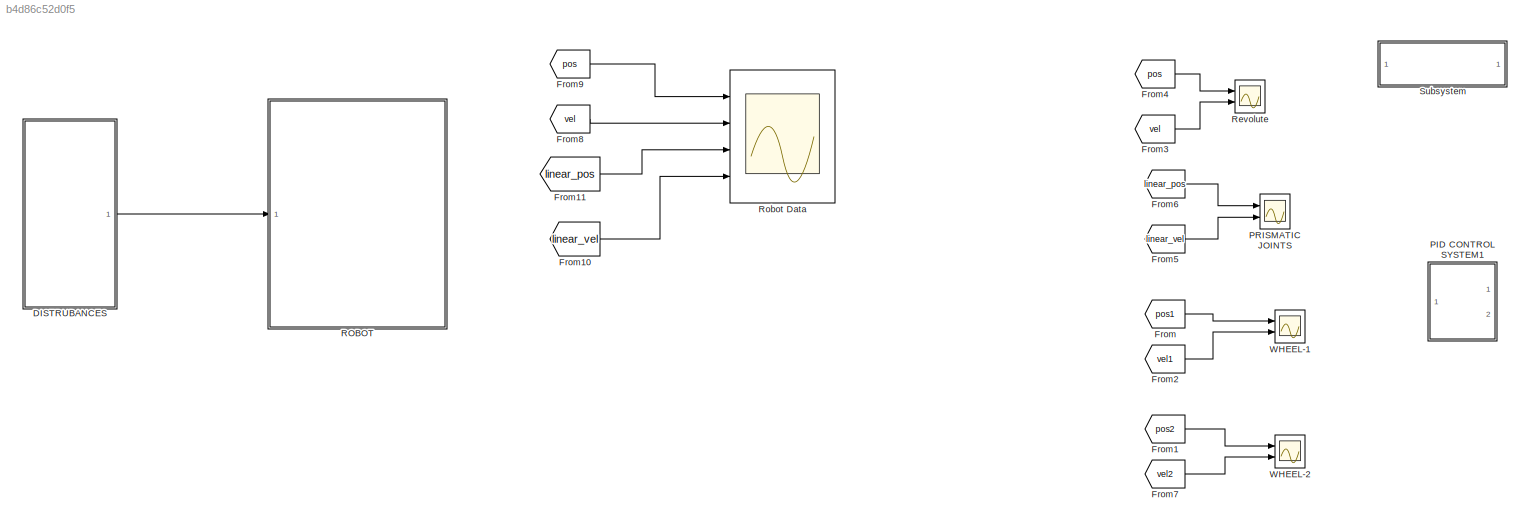
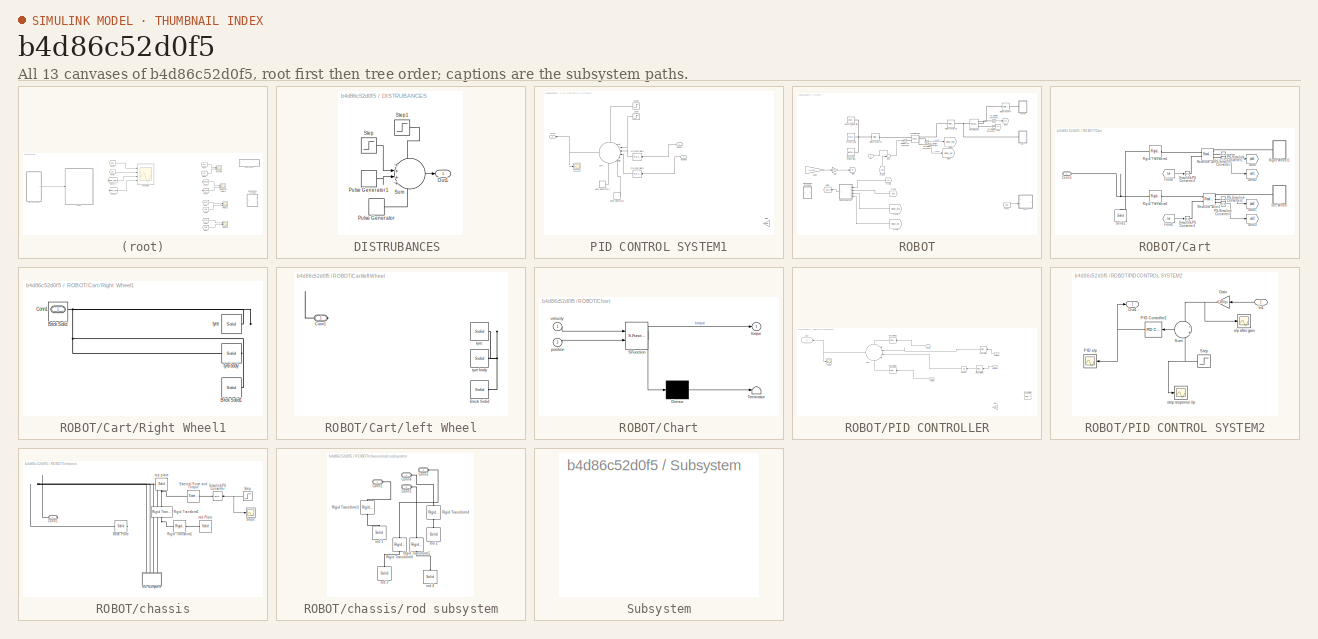
[diagram: thumbnail index - all 13 canvases of the model, root first then tree order]
MODEL slx_b4d86c52d0f5
KIND model
CONFIG AbsTol = auto
CONFIG EnableMultiTasking = on
CONFIG FixedStep = auto
CONFIG MaxStep = auto
CONFIG MinStep = auto
CONFIG RelTol = 1e-3
CONFIG SampleTimeConstraint = Unconstrained
CONFIG Solver = VariableStepAuto
CONFIG SolverName = VariableStepAuto
CONFIG StartTime = 0.0
CONFIG StopTime = 10
BLOCK [SubSystem] DISTRUBANCES 
  Ports = [0, 1]
  RequestExecContextInheritance = off
BLOCK [Outport] DISTRUBANCES /Out1
  IconDisplay = Port number
BLOCK [DiscretePulseGenerator] DISTRUBANCES /Pulse Generator
  Amplitude = 1000
  Period = 5
  Ports = [0, 1]
  PulseType = Time based
  PulseWidth = 0.1
BLOCK [DiscretePulseGenerator] DISTRUBANCES /Pulse Generator1
  Amplitude = -1000
  Period = 5
  PhaseDelay = 2.5
  Ports = [0, 1]
  PulseType = Time based
  PulseWidth = 0.1
BLOCK [Step] DISTRUBANCES /Step
  After = 100
  SampleTime = 0
  Time = 0.5
BLOCK [Step] DISTRUBANCES /Step1
  After = 0
  Before = 100
  SampleTime = 0
  Time = 0.1
BLOCK [Sum] DISTRUBANCES /Sum
  IconShape = round
  InputSameDT = off
  Inputs = ++++
  OutDataTypeStr = Inherit: Inherit via internal rule
  Ports = [4, 1]
  SaturateOnIntegerOverflow = off
BLOCK [From] From
  GotoTag = pos1
  TagVisibility = global
BLOCK [From] From1
  GotoTag = pos2
  TagVisibility = global
BLOCK [From] From10
  GotoTag = linear_vel
  TagVisibility = global
BLOCK [From] From11
  GotoTag = linear_pos
  TagVisibility = global
BLOCK [From] From2
  GotoTag = vel1
  TagVisibility = global
BLOCK [From] From3
  GotoTag = vel
  TagVisibility = global
BLOCK [From] From4
  GotoTag = pos
  TagVisibility = global
BLOCK [From] From5
  GotoTag = linear_vel
  TagVisibility = global
BLOCK [From] From6
  GotoTag = linear_pos
  TagVisibility = global
BLOCK [From] From7
  GotoTag = vel2
  TagVisibility = global
BLOCK [From] From8
  GotoTag = vel
  TagVisibility = global
BLOCK [From] From9
  GotoTag = pos
  TagVisibility = global
BLOCK [SubSystem] PID CONTROL SYSTEM1
  Commented = on
  Ports = [2, 1]
  RequestExecContextInheritance = off
BLOCK [Scope] PID CONTROL SYSTEM1/	PID o//p
  Floating = off
  NumInputPorts = 1
  Ports = [1]
  ScopeSpecificationString = Simulink.scopes.TimeScopeBlockCfg('CurrentConfiguration', extmgr.ConfigurationSet(extmgr.Configuration('Core','General UI',true),extmgr.Configuration('Core','Source UI',true),extmgr.Configuration('Sources','WiredSimulink',true),extmgr.Configuration('Visuals','Time Domain',true,'SerializedDisplays',{struct('MinYLimReal','-3135.24324','MaxYLimReal','3138.49141','YLabelReal','','MinYLimMag','  0.0000...<+1368ch>  <repeated x3 — deduplicated; at blocks: PID o/p>
BLOCK [Gain] PID CONTROL SYSTEM1/Gain
  Gain = 180/pi
  OutDataTypeStr = Inherit: Inherit via internal rule
  ParamDataTypeStr = Inherit: Inherit via internal rule
  SaturateOnIntegerOverflow = off
BLOCK [Reference] PID CONTROL SYSTEM1/PID Controller1  REF=simulink/Continuous/PID Controller
  Ports = [1, 1]
  SourceBlock = simulink/Continuous/PID Controller
  SourceProductBaseCode = SL
  SourceType = PID 1dof
BLOCK [Reference] PID CONTROL SYSTEM1/PID Controller2  REF=simulink/Continuous/PID Controller
  Ports = [1, 1]
  SourceBlock = simulink/Continuous/PID Controller
  SourceProductBaseCode = SL
  SourceType = PID 1dof
BLOCK [DiscretePulseGenerator] PID CONTROL SYSTEM1/Pulse Generator
  Amplitude = 1000
  Period = 10
  Ports = [0, 1]
  PulseType = Time based
  PulseWidth = 50
BLOCK [DiscretePulseGenerator] PID CONTROL SYSTEM1/Pulse Generator1
  Amplitude = -1000
  Period = 10
  PhaseDelay = 0.5
  Ports = [0, 1]
  PulseType = Time based
  PulseWidth = 50
BLOCK [Step] PID CONTROL SYSTEM1/Step
  After = 100
  SampleTime = 0
  Time = 0.5
BLOCK [Step] PID CONTROL SYSTEM1/Step1
  After = 0
  Before = 100
  SampleTime = 0
  Time = 0.1
BLOCK [Sum] PID CONTROL SYSTEM1/Sum
  IconShape = round
  InputSameDT = off
  Inputs = ++--++
  OutDataTypeStr = Inherit: Inherit via internal rule
  Ports = [6, 1]
  SaturateOnIntegerOverflow = off
BLOCK [Outport] PID CONTROL SYSTEM1/force
  IconDisplay = Port number
BLOCK [Inport] PID CONTROL SYSTEM1/position
  IconDisplay = Port number
  Port = 2
BLOCK [Inport] PID CONTROL SYSTEM1/velocity
  IconDisplay = Port number
BLOCK [Scope] PRISMATIC JOINTS
  Floating = off
  NumInputPorts = 2
  Ports = [2]
  ScopeSpecificationString = Simulink.scopes.TimeScopeBlockCfg('CurrentConfiguration', extmgr.ConfigurationSet(extmgr.Configuration('Core','General UI',true),extmgr.Configuration('Core','Source UI',true),extmgr.Configuration('Sources','WiredSimulink',true,'DataLoggingVariableName','ScopeData1'),extmgr.Configuration('Visuals','Time Domain',true,'SerializedDisplays',{struct('MinYLimReal','-0.03252','MaxYLimReal','0.04221','YLab...<+2046ch>
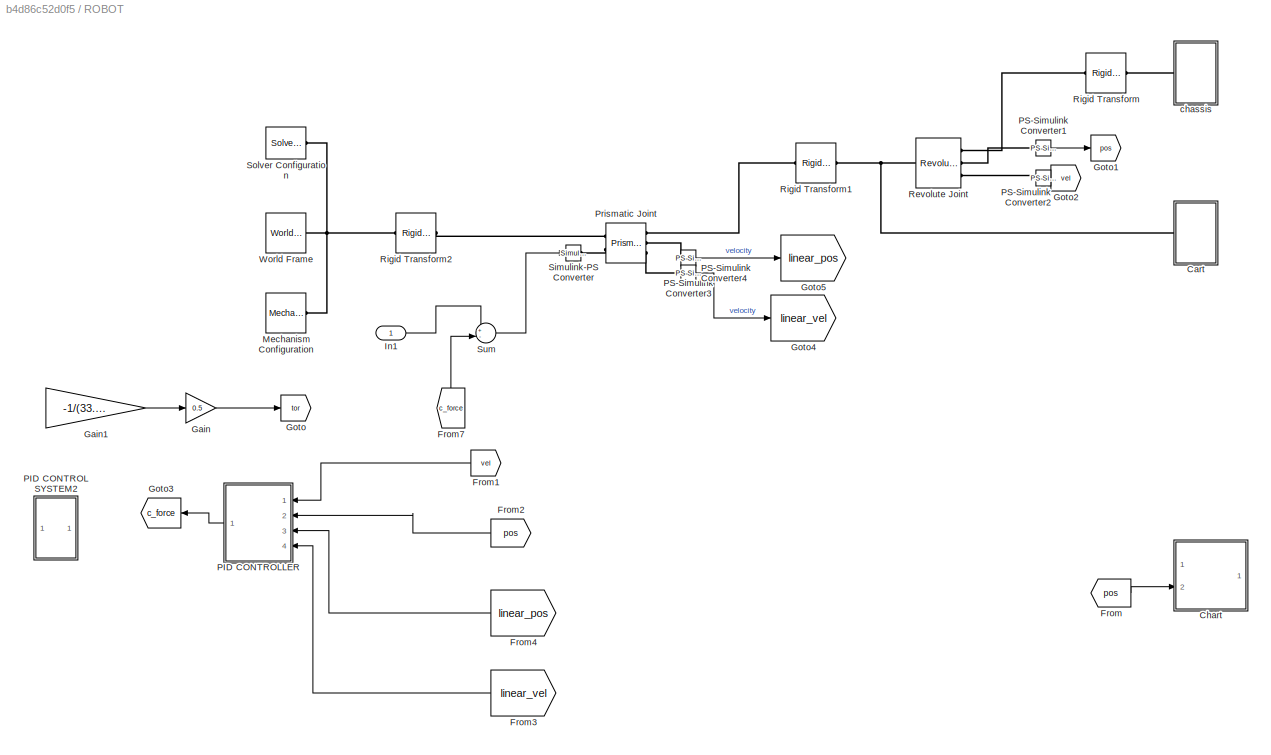
BLOCK [SubSystem] ROBOT
  Ports = [1]
  RequestExecContextInheritance = off
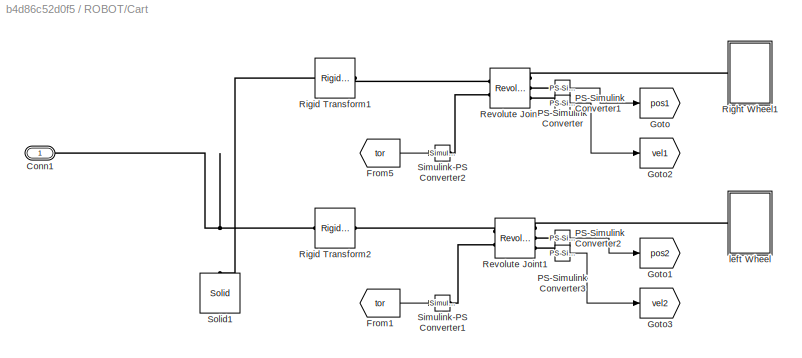
BLOCK [SubSystem] ROBOT/Cart
  Ports = [0, 0, 0, 0, 0, 1]
  RequestExecContextInheritance = off
BLOCK [PMIOPort] ROBOT/Cart/Conn1
  Side = Left
BLOCK [From] ROBOT/Cart/From1
  GotoTag = tor
  TagVisibility = global
BLOCK [From] ROBOT/Cart/From5
  GotoTag = tor
  TagVisibility = global
BLOCK [Goto] ROBOT/Cart/Goto
  GotoTag = pos1
  TagVisibility = global
BLOCK [Goto] ROBOT/Cart/Goto1
  GotoTag = pos2
  TagVisibility = global
BLOCK [Goto] ROBOT/Cart/Goto2
  GotoTag = vel1
  TagVisibility = global
BLOCK [Goto] ROBOT/Cart/Goto3
  GotoTag = vel2
  TagVisibility = global
BLOCK [Reference] ROBOT/Cart/PS-Simulink Converter  REF=nesl_utility/PS-Simulink
Converter
  Ports = [0, 1, 0, 0, 0, 1]
  SourceBlock = nesl_utility/PS-Simulink\nConverter
  SourceProductBaseCode = SS
  SourceType = PS-Simulink\nConverter
BLOCK [Reference] ROBOT/Cart/PS-Simulink Converter1  REF=nesl_utility/PS-Simulink
Converter
  Ports = [0, 1, 0, 0, 0, 1]
  SourceBlock = nesl_utility/PS-Simulink\nConverter
  SourceProductBaseCode = SS
  SourceType = PS-Simulink\nConverter
BLOCK [Reference] ROBOT/Cart/PS-Simulink Converter2  REF=nesl_utility/PS-Simulink
Converter
  Ports = [0, 1, 0, 0, 0, 1]
  SourceBlock = nesl_utility/PS-Simulink\nConverter
  SourceProductBaseCode = SS
  SourceType = PS-Simulink\nConverter
BLOCK [Reference] ROBOT/Cart/PS-Simulink Converter3  REF=nesl_utility/PS-Simulink
Converter
  Ports = [0, 1, 0, 0, 0, 1]
  SourceBlock = nesl_utility/PS-Simulink\nConverter
  SourceProductBaseCode = SS
  SourceType = PS-Simulink\nConverter
BLOCK [Reference] ROBOT/Cart/Revolute Joint  REF=sm_lib/Joints/Revolute Joint
  Ports = [0, 0, 0, 0, 0, 2, 3]
  SourceBlock = sm_lib/Joints/Revolute Joint
  SourceProductBaseCode = MS
  SourceType = Revolute Joint
BLOCK [Reference] ROBOT/Cart/Revolute Joint1  REF=sm_lib/Joints/Revolute Joint
  Ports = [0, 0, 0, 0, 0, 2, 3]
  SourceBlock = sm_lib/Joints/Revolute Joint
  SourceProductBaseCode = MS
  SourceType = Revolute Joint
BLOCK [SubSystem] ROBOT/Cart/Right Wheel1
  Ports = [0, 0, 0, 0, 0, 1]
  RequestExecContextInheritance = off
BLOCK [Reference] ROBOT/Cart/Right Wheel1/Brick Solid  REF=sm_lib/Body Elements/Solid
  Ports = [0, 0, 0, 0, 0, 0, 1]
  SourceBlock = sm_lib/Body Elements/Solid
  SourceProductBaseCode = MS
  SourceType = Solid
BLOCK [Reference] ROBOT/Cart/Right Wheel1/Brick Solid1  REF=sm_lib/Body Elements/Solid
  Ports = [0, 0, 0, 0, 0, 0, 1]
  SourceBlock = sm_lib/Body Elements/Solid
  SourceProductBaseCode = MS
  SourceType = Solid
BLOCK [PMIOPort] ROBOT/Cart/Right Wheel1/Conn1
  Side = Left
BLOCK [Reference] ROBOT/Cart/Right Wheel1/tyre  REF=sm_lib/Body Elements/Solid
  Ports = [0, 0, 0, 0, 0, 0, 1]
  SourceBlock = sm_lib/Body Elements/Solid
  SourceProductBaseCode = MS
  SourceType = Solid
BLOCK [Reference] ROBOT/Cart/Right Wheel1/tyre body  REF=sm_lib/Body Elements/Solid
  Ports = [0, 0, 0, 0, 0, 0, 1]
  SourceBlock = sm_lib/Body Elements/Solid
  SourceProductBaseCode = MS
  SourceType = Solid
BLOCK [Reference] ROBOT/Cart/Rigid Transform1  REF=sm_lib/Frames and
Transforms/Rigid
Transform
  Ports = [0, 0, 0, 0, 0, 1, 1]
  SourceBlock = sm_lib/Frames and\nTransforms/Rigid\nTransform
  SourceProductBaseCode = MS
  SourceType = Rigid\nTransform
BLOCK [Reference] ROBOT/Cart/Rigid Transform2  REF=sm_lib/Frames and
Transforms/Rigid
Transform
  Ports = [0, 0, 0, 0, 0, 1, 1]
  SourceBlock = sm_lib/Frames and\nTransforms/Rigid\nTransform
  SourceProductBaseCode = MS
  SourceType = Rigid\nTransform
BLOCK [Reference] ROBOT/Cart/Simulink-PS Converter1  REF=nesl_utility/Simulink-PS
Converter
  Ports = [1, 0, 0, 0, 0, 0, 1]
  SourceBlock = nesl_utility/Simulink-PS\nConverter
  SourceProductBaseCode = SS
  SourceType = Simulink-PS\nConverter
BLOCK [Reference] ROBOT/Cart/Simulink-PS Converter2  REF=nesl_utility/Simulink-PS
Converter
  Ports = [1, 0, 0, 0, 0, 0, 1]
  SourceBlock = nesl_utility/Simulink-PS\nConverter
  SourceProductBaseCode = SS
  SourceType = Simulink-PS\nConverter
BLOCK [Reference] ROBOT/Cart/Solid1  REF=sm_lib/Body Elements/Solid
  Ports = [0, 0, 0, 0, 0, 0, 1]
  SourceBlock = sm_lib/Body Elements/Solid
  SourceProductBaseCode = MS
  SourceType = Solid
BLOCK [SubSystem] ROBOT/Cart/left Wheel
  Ports = [0, 0, 0, 0, 0, 1]
  RequestExecContextInheritance = off
BLOCK [Reference] ROBOT/Cart/left Wheel/Brick Solid  REF=sm_lib/Body Elements/Solid
  Ports = [0, 0, 0, 0, 0, 0, 1]
  SourceBlock = sm_lib/Body Elements/Solid
  SourceProductBaseCode = MS
  SourceType = Solid
BLOCK [PMIOPort] ROBOT/Cart/left Wheel/Conn1
  Side = Left
BLOCK [Reference] ROBOT/Cart/left Wheel/tyre  REF=sm_lib/Body Elements/Solid
  Ports = [0, 0, 0, 0, 0, 0, 1]
  SourceBlock = sm_lib/Body Elements/Solid
  SourceProductBaseCode = MS
  SourceType = Solid
BLOCK [Reference] ROBOT/Cart/left Wheel/tyre body  REF=sm_lib/Body Elements/Solid
  Ports = [0, 0, 0, 0, 0, 0, 1]
  SourceBlock = sm_lib/Body Elements/Solid
  SourceProductBaseCode = MS
  SourceType = Solid
BLOCK [SubSystem] ROBOT/Chart
  Commented = on
  ErrorFcn = Stateflow.Translate.translate
  PermitHierarchicalResolution = ExplicitOnly
  Ports = [2, 1]
  RequestExecContextInheritance = off
  SFBlockType = Chart
  TreatAsAtomicUnit = on
BLOCK [Demux] ROBOT/Chart/ Demux 
  DisplayOption = bar
  Outputs = 1
  Ports = [1, 1]
BLOCK [S-Function] ROBOT/Chart/ SFunction 
  EnableBusSupport = on
  FunctionName = sf_sfun
  PortCounts = [2 2]
  Ports = [2, 2]
  SFcnIsStateOwnerBlock = off
  SFunctionDeploymentMode = off
  Tag = Stateflow S-Function BALANCING_2019 3
BLOCK [Terminator] ROBOT/Chart/ Terminator 
BLOCK [Inport] ROBOT/Chart/position
  IconDisplay = Port number
  Port = 2
BLOCK [Outport] ROBOT/Chart/torque
  IconDisplay = Port number
BLOCK [Inport] ROBOT/Chart/velocity
  IconDisplay = Port number
BLOCK [From] ROBOT/From
  Commented = on
  GotoTag = pos
  TagVisibility = global
BLOCK [From] ROBOT/From1
  GotoTag = vel
  TagVisibility = global
BLOCK [From] ROBOT/From2
  GotoTag = pos
  TagVisibility = global
BLOCK [From] ROBOT/From3
  GotoTag = linear_vel
  TagVisibility = global
BLOCK [From] ROBOT/From4
  GotoTag = linear_pos
  TagVisibility = global
BLOCK [From] ROBOT/From7
  GotoTag = c_force
BLOCK [Gain] ROBOT/Gain
  Gain = 0.5
  OutDataTypeStr = Inherit: Inherit via internal rule
  ParamDataTypeStr = Inherit: Inherit via internal rule
  SaturateOnIntegerOverflow = off
BLOCK [Gain] ROBOT/Gain1
  Gain = -1/(33.5*10^-3)
  OutDataTypeStr = Inherit: Inherit via internal rule
  ParamDataTypeStr = Inherit: Inherit via internal rule
  SaturateOnIntegerOverflow = off
BLOCK [Goto] ROBOT/Goto
  GotoTag = tor
  TagVisibility = global
BLOCK [Goto] ROBOT/Goto1
  GotoTag = pos
  TagVisibility = global
BLOCK [Goto] ROBOT/Goto2
  GotoTag = vel
  TagVisibility = global
BLOCK [Goto] ROBOT/Goto3
  GotoTag = c_force
BLOCK [Goto] ROBOT/Goto4
  GotoTag = linear_vel
  TagVisibility = global
BLOCK [Goto] ROBOT/Goto5
  GotoTag = linear_pos
  TagVisibility = global
BLOCK [Inport] ROBOT/In1
  IconDisplay = Port number
BLOCK [Reference] ROBOT/Mechanism Configuration  REF=sm_lib/Utilities/Mechanism
Configuration
  Ports = [0, 0, 0, 0, 0, 0, 1]
  SourceBlock = sm_lib/Utilities/Mechanism\nConfiguration
  SourceProductBaseCode = MS
  SourceType = Mechanism\nConfiguration
BLOCK [SubSystem] ROBOT/PID CONTROL SYSTEM2
  Commented = on
  Ports = [1, 1]
  RequestExecContextInheritance = off
BLOCK [Scope] ROBOT/PID CONTROL SYSTEM2/	PID o//p
  Floating = off
  NumInputPorts = 1
  Ports = [1]
BLOCK [Gain] ROBOT/PID CONTROL SYSTEM2/Gain
  Gain = 180/pi
  OutDataTypeStr = Inherit: Inherit via internal rule
  ParamDataTypeStr = Inherit: Inherit via internal rule
  SaturateOnIntegerOverflow = off
BLOCK [Inport] ROBOT/PID CONTROL SYSTEM2/In1
  IconDisplay = Port number
BLOCK [Outport] ROBOT/PID CONTROL SYSTEM2/Out1
  IconDisplay = Port number
BLOCK [Reference] ROBOT/PID CONTROL SYSTEM2/PID Controller1  REF=simulink/Continuous/PID Controller
  Ports = [1, 1]
  SourceBlock = simulink/Continuous/PID Controller
  SourceProductBaseCode = SL
  SourceType = PID 1dof
BLOCK [Step] ROBOT/PID CONTROL SYSTEM2/Step
  After = 0
  Before = 1
  SampleTime = 0
  Time = 0.1
BLOCK [Sum] ROBOT/PID CONTROL SYSTEM2/Sum
  IconShape = round
  InputSameDT = off
  Inputs = -+
  OutDataTypeStr = Inherit: Inherit via internal rule
  Ports = [2, 1]
  SaturateOnIntegerOverflow = off
BLOCK [Scope] ROBOT/PID CONTROL SYSTEM2/o//p after gain 
  Floating = off
  NumInputPorts = 1
  Ports = [1]
  ScopeSpecificationString = Simulink.scopes.TimeScopeBlockCfg('CurrentConfiguration', extmgr.ConfigurationSet(extmgr.Configuration('Core','General UI',true),extmgr.Configuration('Core','Source UI',true),extmgr.Configuration('Sources','WiredSimulink',true,'DataLoggingVariableName','ScopeData2'),extmgr.Configuration('Visuals','Time Domain',true,'SerializedDisplays',{struct('MinYLimReal','-151.46736','MaxYLimReal','16.82971','Y...<+1404ch>
BLOCK [Scope] ROBOT/PID CONTROL SYSTEM2/step response i//p
  Floating = off
  NumInputPorts = 1
  Ports = [1]
  ScopeSpecificationString = Simulink.scopes.TimeScopeBlockCfg('CurrentConfiguration', extmgr.ConfigurationSet(extmgr.Configuration('Core','General UI',true),extmgr.Configuration('Core','Source UI',true),extmgr.Configuration('Sources','WiredSimulink',true,'DataLoggingVariableName','ScopeData3'),extmgr.Configuration('Visuals','Time Domain',true,'SerializedDisplays',{struct('MinYLimReal','-0.125','MaxYLimReal','1.125','YLabelRe...<+1351ch>
BLOCK [SubSystem] ROBOT/PID CONTROLLER
  Ports = [4, 1]
  RequestExecContextInheritance = off
BLOCK [Scope] ROBOT/PID CONTROLLER/	PID o//p
  Floating = off
  NumInputPorts = 1
  Ports = [1]
BLOCK [Gain] ROBOT/PID CONTROLLER/Gain
  Commented = on
  Gain = 180/pi
  OutDataTypeStr = Inherit: Inherit via internal rule
  ParamDataTypeStr = Inherit: Inherit via internal rule
  SaturateOnIntegerOverflow = off
BLOCK [Integrator] ROBOT/PID CONTROLLER/Integrator
  Ports = [1, 1]
BLOCK [Reference] ROBOT/PID CONTROLLER/PID Controller  REF=simulink/Continuous/PID Controller
  Ports = [1, 1]
  SourceBlock = simulink/Continuous/PID Controller
  SourceProductBaseCode = SL
  SourceProductName = Simulink
  SourceType = PID 1dof
BLOCK [Reference] ROBOT/PID CONTROLLER/PID Controller1  REF=simulink/Continuous/PID Controller
  Ports = [1, 1]
  SourceBlock = simulink/Continuous/PID Controller
  SourceProductBaseCode = SL
  SourceType = PID 1dof
BLOCK [Reference] ROBOT/PID CONTROLLER/PID Controller2  REF=simulink/Continuous/PID Controller
  Ports = [1, 1]
  SourceBlock = simulink/Continuous/PID Controller
  SourceProductBaseCode = SL
  SourceType = PID 1dof
BLOCK [Reference] ROBOT/PID CONTROLLER/PID Controller3  REF=simulink/Continuous/PID Controller
  Ports = [1, 1]
  SourceBlock = simulink/Continuous/PID Controller
  SourceProductBaseCode = SL
  SourceProductName = Simulink
  SourceType = PID 1dof
BLOCK [Reference] ROBOT/PID CONTROLLER/PID Controller4  REF=simulink/Continuous/PID Controller
  Commented = on
  Ports = [1, 1]
  SourceBlock = simulink/Continuous/PID Controller
  SourceProductBaseCode = SL
  SourceType = PID 1dof
BLOCK [Sum] ROBOT/PID CONTROLLER/Sum
  IconShape = round
  InputSameDT = off
  Inputs = ++++
  OutDataTypeStr = Inherit: Inherit via internal rule
  Ports = [4, 1]
  SaturateOnIntegerOverflow = off
BLOCK [Outport] ROBOT/PID CONTROLLER/force
  IconDisplay = Port number
BLOCK [Inport] ROBOT/PID CONTROLLER/position
  IconDisplay = Port number
  Port = 2
BLOCK [Inport] ROBOT/PID CONTROLLER/position1
  IconDisplay = Port number
  Port = 3
BLOCK [Inport] ROBOT/PID CONTROLLER/velocity
  IconDisplay = Port number
BLOCK [Inport] ROBOT/PID CONTROLLER/velocity1
  IconDisplay = Port number
  Port = 4
BLOCK [Reference] ROBOT/PS-Simulink Converter1  REF=nesl_utility/PS-Simulink
Converter
  Ports = [0, 1, 0, 0, 0, 1]
  SourceBlock = nesl_utility/PS-Simulink\nConverter
  SourceProductBaseCode = SS
  SourceType = PS-Simulink\nConverter
BLOCK [Reference] ROBOT/PS-Simulink Converter2  REF=nesl_utility/PS-Simulink
Converter
  Ports = [0, 1, 0, 0, 0, 1]
  SourceBlock = nesl_utility/PS-Simulink\nConverter
  SourceProductBaseCode = SS
  SourceType = PS-Simulink\nConverter
BLOCK [Reference] ROBOT/PS-Simulink Converter3  REF=nesl_utility/PS-Simulink
Converter
  Ports = [0, 1, 0, 0, 0, 1]
  SourceBlock = nesl_utility/PS-Simulink\nConverter
  SourceProductBaseCode = SS
  SourceType = PS-Simulink\nConverter
BLOCK [Reference] ROBOT/PS-Simulink Converter4  REF=nesl_utility/PS-Simulink
Converter
  Ports = [0, 1, 0, 0, 0, 1]
  SourceBlock = nesl_utility/PS-Simulink\nConverter
  SourceProductBaseCode = SS
  SourceType = PS-Simulink\nConverter
BLOCK [Reference] ROBOT/Prismatic Joint  REF=sm_lib/Joints/Prismatic
Joint
  Ports = [0, 0, 0, 0, 0, 2, 3]
  SourceBlock = sm_lib/Joints/Prismatic\nJoint
  SourceProductBaseCode = MS
  SourceType = Prismatic\nJoint
BLOCK [Reference] ROBOT/Revolute Joint  REF=sm_lib/Joints/Revolute Joint
  Ports = [0, 0, 0, 0, 0, 1, 3]
  SourceBlock = sm_lib/Joints/Revolute Joint
  SourceProductBaseCode = MS
  SourceType = Revolute Joint
BLOCK [Reference] ROBOT/Rigid Transform  REF=sm_lib/Frames and
Transforms/Rigid
Transform
  Ports = [0, 0, 0, 0, 0, 1, 1]
  SourceBlock = sm_lib/Frames and\nTransforms/Rigid\nTransform
  SourceProductBaseCode = MS
  SourceType = Rigid\nTransform
BLOCK [Reference] ROBOT/Rigid Transform1  REF=sm_lib/Frames and
Transforms/Rigid
Transform
  Ports = [0, 0, 0, 0, 0, 1, 1]
  SourceBlock = sm_lib/Frames and\nTransforms/Rigid\nTransform
  SourceProductBaseCode = MS
  SourceType = Rigid\nTransform
BLOCK [Reference] ROBOT/Rigid Transform2  REF=sm_lib/Frames and
Transforms/Rigid
Transform
  Ports = [0, 0, 0, 0, 0, 1, 1]
  SourceBlock = sm_lib/Frames and\nTransforms/Rigid\nTransform
  SourceProductBaseCode = MS
  SourceType = Rigid\nTransform
BLOCK [Reference] ROBOT/Simulink-PS Converter  REF=nesl_utility/Simulink-PS
Converter
  Ports = [1, 0, 0, 0, 0, 0, 1]
  SourceBlock = nesl_utility/Simulink-PS\nConverter
  SourceProductBaseCode = SS
  SourceType = Simulink-PS\nConverter
BLOCK [Reference] ROBOT/Solver Configuration  REF=nesl_utility/Solver
Configuration
  Ports = [0, 0, 0, 0, 0, 0, 1]
  SourceBlock = nesl_utility/Solver\nConfiguration
  SourceProductBaseCode = SS
  SourceType = Solver\nConfiguration
BLOCK [Sum] ROBOT/Sum
  IconShape = round
  InputSameDT = off
  Inputs = +-
  OutDataTypeStr = Inherit: Inherit via internal rule
  Ports = [2, 1]
  SaturateOnIntegerOverflow = off
BLOCK [Reference] ROBOT/World Frame  REF=sm_lib/Frames and
Transforms/World Frame
  Ports = [0, 0, 0, 0, 0, 0, 1]
  SourceBlock = sm_lib/Frames and\nTransforms/World Frame
  SourceProductBaseCode = MS
  SourceType = World Frame
BLOCK [SubSystem] ROBOT/chassis
  Ports = [0, 0, 0, 0, 0, 1]
  RequestExecContextInheritance = off
BLOCK [Reference] ROBOT/chassis/Base Plate  REF=sm_lib/Body Elements/Solid
  Ports = [0, 0, 0, 0, 0, 0, 1]
  SourceBlock = sm_lib/Body Elements/Solid
  SourceProductBaseCode = MS
  SourceType = Solid
BLOCK [PMIOPort] ROBOT/chassis/Conn1
  Side = Left
BLOCK [Reference] ROBOT/chassis/External Force and Torque  REF=sm_lib/Forces and
Torques/External Force
and Torque
  Commented = on
  Ports = [0, 0, 0, 0, 0, 1, 1]
  SourceBlock = sm_lib/Forces and\nTorques/External Force\nand Torque
  SourceProductBaseCode = MS
  SourceType = External Force\nand Torque
BLOCK [Reference] ROBOT/chassis/Rigid Transform1  REF=sm_lib/Frames and
Transforms/Rigid
Transform
  Ports = [0, 0, 0, 0, 0, 1, 1]
  SourceBlock = sm_lib/Frames and\nTransforms/Rigid\nTransform
  SourceProductBaseCode = MS
  SourceType = Rigid\nTransform
BLOCK [Reference] ROBOT/chassis/Rigid Transform2  REF=sm_lib/Frames and
Transforms/Rigid
Transform
  Ports = [0, 0, 0, 0, 0, 1, 1]
  SourceBlock = sm_lib/Frames and\nTransforms/Rigid\nTransform
  SourceProductBaseCode = MS
  SourceType = Rigid\nTransform
BLOCK [Scope] ROBOT/chassis/Scope
  Commented = on
  Floating = off
  NumInputPorts = 1
  Ports = [1]
  ScopeSpecificationString = Simulink.scopes.TimeScopeBlockCfg('CurrentConfiguration', extmgr.ConfigurationSet(extmgr.Configuration('Core','General UI',true),extmgr.Configuration('Core','Source UI',true),extmgr.Configuration('Sources','WiredSimulink',true,'DataLoggingVariableName','ScopeData1'),extmgr.Configuration('Visuals','Time Domain',true,'SerializedDisplays',{struct('MinYLimReal','-0.125','MaxYLimReal','1.125','YLabelRe...<+1351ch>
BLOCK [Reference] ROBOT/chassis/Simulink-PS Converter  REF=nesl_utility/Simulink-PS
Converter
  Commented = on
  Ports = [1, 0, 0, 0, 0, 0, 1]
  SourceBlock = nesl_utility/Simulink-PS\nConverter
  SourceProductBaseCode = SS
  SourceType = Simulink-PS\nConverter
BLOCK [Step] ROBOT/chassis/Step
  After = 0
  Before = 1
  Commented = on
  SampleTime = 0
  Time = 0.01
BLOCK [Reference] ROBOT/chassis/mid Plate  REF=sm_lib/Body Elements/Solid
  Ports = [0, 0, 0, 0, 0, 0, 1]
  SourceBlock = sm_lib/Body Elements/Solid
  SourceProductBaseCode = MS
  SourceType = Solid
BLOCK [SubSystem] ROBOT/chassis/rod subsystem
  Ports = [0, 0, 0, 0, 0, 4]
  RequestExecContextInheritance = off
BLOCK [PMIOPort] ROBOT/chassis/rod subsystem/Conn1
  Side = Left
BLOCK [PMIOPort] ROBOT/chassis/rod subsystem/Conn2
  Port = 2
  Side = Left
BLOCK [PMIOPort] ROBOT/chassis/rod subsystem/Conn3
  Port = 3
  Side = Left
BLOCK [PMIOPort] ROBOT/chassis/rod subsystem/Conn4
  Port = 4
  Side = Left
BLOCK [Reference] ROBOT/chassis/rod subsystem/Rigid Transform3  REF=sm_lib/Frames and
Transforms/Rigid
Transform
  Ports = [0, 0, 0, 0, 0, 1, 1]
  SourceBlock = sm_lib/Frames and\nTransforms/Rigid\nTransform
  SourceProductBaseCode = MS
  SourceType = Rigid\nTransform
BLOCK [Reference] ROBOT/chassis/rod subsystem/Rigid Transform4  REF=sm_lib/Frames and
Transforms/Rigid
Transform
  Ports = [0, 0, 0, 0, 0, 1, 1]
  SourceBlock = sm_lib/Frames and\nTransforms/Rigid\nTransform
  SourceProductBaseCode = MS
  SourceType = Rigid\nTransform
BLOCK [Reference] ROBOT/chassis/rod subsystem/Rigid Transform5  REF=sm_lib/Frames and
Transforms/Rigid
Transform
  Ports = [0, 0, 0, 0, 0, 1, 1]
  SourceBlock = sm_lib/Frames and\nTransforms/Rigid\nTransform
  SourceProductBaseCode = MS
  SourceType = Rigid\nTransform
BLOCK [Reference] ROBOT/chassis/rod subsystem/Rigid Transform6  REF=sm_lib/Frames and
Transforms/Rigid
Transform
  Ports = [0, 0, 0, 0, 0, 1, 1]
  SourceBlock = sm_lib/Frames and\nTransforms/Rigid\nTransform
  SourceProductBaseCode = MS
  SourceType = Rigid\nTransform
BLOCK [Reference] ROBOT/chassis/rod subsystem/rod 1  REF=sm_lib/Body Elements/Solid
  Ports = [0, 0, 0, 0, 0, 0, 1]
  SourceBlock = sm_lib/Body Elements/Solid
  SourceProductBaseCode = MS
  SourceType = Solid
BLOCK [Reference] ROBOT/chassis/rod subsystem/rod 2  REF=sm_lib/Body Elements/Solid
  Ports = [0, 0, 0, 0, 0, 0, 1]
  SourceBlock = sm_lib/Body Elements/Solid
  SourceProductBaseCode = MS
  SourceType = Solid
BLOCK [Reference] ROBOT/chassis/rod subsystem/rod 3  REF=sm_lib/Body Elements/Solid
  Ports = [0, 0, 0, 0, 0, 0, 1]
  SourceBlock = sm_lib/Body Elements/Solid
  SourceProductBaseCode = MS
  SourceType = Solid
BLOCK [Reference] ROBOT/chassis/rod subsystem/rod 4  REF=sm_lib/Body Elements/Solid
  Ports = [0, 0, 0, 0, 0, 0, 1]
  SourceBlock = sm_lib/Body Elements/Solid
  SourceProductBaseCode = MS
  SourceType = Solid
BLOCK [Reference] ROBOT/chassis/top plate  REF=sm_lib/Body Elements/Solid
  Ports = [0, 0, 0, 0, 0, 0, 1]
  SourceBlock = sm_lib/Body Elements/Solid
  SourceProductBaseCode = MS
  SourceType = Solid
BLOCK [Scope] Revolute
  Floating = off
  NumInputPorts = 2
  Ports = [2]
  ScopeSpecificationString = Simulink.scopes.TimeScopeBlockCfg('CurrentConfiguration', extmgr.ConfigurationSet(extmgr.Configuration('Core','General UI',true),extmgr.Configuration('Core','Source UI',true),extmgr.Configuration('Sources','WiredSimulink',true,'DataLoggingVariableName','ScopeData2'),extmgr.Configuration('Visuals','Time Domain',true,'SerializedDisplays',{struct('MinYLimReal','-0.12154','MaxYLimReal','0.40472','YLab...<+2054ch>
BLOCK [Scope] Robot Data
  Floating = off
  NumInputPorts = 4
  Ports = [4]
  ScopeSpecificationString = Simulink.scopes.TimeScopeBlockCfg('CurrentConfiguration', extmgr.ConfigurationSet(extmgr.Configuration('Core','General UI',true),extmgr.Configuration('Core','Source UI',true),extmgr.Configuration('Sources','WiredSimulink',true,'DataLoggingVariableName','ScopeData1','DataLoggingDecimateData',true),extmgr.Configuration('Visuals','Time Domain',true,'SerializedDisplays',{struct('MinYLimReal','-0.06463...<+3498ch>
BLOCK [SubSystem] Subsystem
  OpenFcn = open_system('sm_lib')
  Ports = []
  RequestExecContextInheritance = off
  ShowPortLabels = none
BLOCK [Scope] WHEEL-1
  Floating = off
  NumInputPorts = 2
  Ports = [2]
  ScopeSpecificationString = Simulink.scopes.TimeScopeBlockCfg('CurrentConfiguration', extmgr.ConfigurationSet(extmgr.Configuration('Core','General UI',true),extmgr.Configuration('Core','Source UI',true),extmgr.Configuration('Sources','WiredSimulink',true,'DataLoggingVariableName','ScopeData4'),extmgr.Configuration('Visuals','Time Domain',true,'SerializedDisplays',{struct('MinYLimReal','-18.44341','MaxYLimReal','15.32526','YL...<+1441ch>
BLOCK [Scope] WHEEL-2
  Floating = off
  NumInputPorts = 2
  Ports = [2]
  ScopeSpecificationString = Simulink.scopes.TimeScopeBlockCfg('CurrentConfiguration', extmgr.ConfigurationSet(extmgr.Configuration('Core','General UI',true),extmgr.Configuration('Core','Source UI',true),extmgr.Configuration('Sources','WiredSimulink',true,'DataLoggingVariableName','ScopeData3'),extmgr.Configuration('Visuals','Time Domain',true),extmgr.Configuration('Tools','Plot Navigation',true),extmgr.Configuration('Tools',...<+40ch>
LINE DISTRUBANCES /Pulse Generator1:1 -> DISTRUBANCES /Sum:3
LINE DISTRUBANCES /Pulse Generator:1 -> DISTRUBANCES /Sum:4
LINE DISTRUBANCES /Step1:1 -> DISTRUBANCES /Sum:1
LINE DISTRUBANCES /Step:1 -> DISTRUBANCES /Sum:2
LINE DISTRUBANCES /Sum:1 -> DISTRUBANCES /Out1:1
LINE DISTRUBANCES :1 -> ROBOT:1
LINE From10:1 -> Robot Data:4
LINE From11:1 -> Robot Data:3
LINE From1:1 -> WHEEL-2:1
LINE From2:1 -> WHEEL-1:2
LINE From3:1 -> Revolute:2
LINE From4:1 -> Revolute:1
LINE From5:1 -> PRISMATIC JOINTS:2
LINE From6:1 -> PRISMATIC JOINTS:1
LINE From7:1 -> WHEEL-2:2
LINE From8:1 -> Robot Data:2
LINE From9:1 -> Robot Data:1
LINE From:1 -> WHEEL-1:1
LINE PID CONTROL SYSTEM1/PID Controller1:1 -> PID CONTROL SYSTEM1/Sum:3
LINE PID CONTROL SYSTEM1/PID Controller2:1 -> PID CONTROL SYSTEM1/Sum:4
LINE PID CONTROL SYSTEM1/Pulse Generator1:1 -> PID CONTROL SYSTEM1/Sum:6
LINE PID CONTROL SYSTEM1/Pulse Generator:1 -> PID CONTROL SYSTEM1/Sum:5
LINE PID CONTROL SYSTEM1/Step1:1 -> PID CONTROL SYSTEM1/Sum:1
LINE PID CONTROL SYSTEM1/Step:1 -> PID CONTROL SYSTEM1/Sum:2
NET PID CONTROL SYSTEM1/Sum:1 -> PID CONTROL SYSTEM1/	PID o//p:1, PID CONTROL SYSTEM1/force:1
LINE PID CONTROL SYSTEM1/position:1 -> PID CONTROL SYSTEM1/PID Controller2:1
LINE PID CONTROL SYSTEM1/velocity:1 -> PID CONTROL SYSTEM1/PID Controller1:1
LINE ROBOT/Cart/From1:1 -> ROBOT/Cart/Simulink-PS Converter1:1
LINE ROBOT/Cart/From5:1 -> ROBOT/Cart/Simulink-PS Converter2:1
LINE ROBOT/Cart/PS-Simulink Converter1:1 -> ROBOT/Cart/Goto2:1
LINE ROBOT/Cart/PS-Simulink Converter2:1 -> ROBOT/Cart/Goto1:1
LINE ROBOT/Cart/PS-Simulink Converter3:1 -> ROBOT/Cart/Goto3:1
LINE ROBOT/Cart/PS-Simulink Converter:1 -> ROBOT/Cart/Goto:1
LINE ROBOT/From1:1 -> ROBOT/PID CONTROLLER:1
LINE ROBOT/From2:1 -> ROBOT/PID CONTROLLER:2
LINE ROBOT/From3:1 -> ROBOT/PID CONTROLLER:4
LINE ROBOT/From4:1 -> ROBOT/PID CONTROLLER:3
LINE ROBOT/From7:1 -> ROBOT/Sum:2
LINE ROBOT/From:1 -> ROBOT/Chart:2
LINE ROBOT/Gain1:1 -> ROBOT/Gain:1
LINE ROBOT/Gain:1 -> ROBOT/Goto:1
LINE ROBOT/In1:1 -> ROBOT/Sum:1
NET ROBOT/PID CONTROL SYSTEM2/Gain:1 -> ROBOT/PID CONTROL SYSTEM2/Sum:1, ROBOT/PID CONTROL SYSTEM2/o//p after gain :1
LINE ROBOT/PID CONTROL SYSTEM2/In1:1 -> ROBOT/PID CONTROL SYSTEM2/Gain:1
NET ROBOT/PID CONTROL SYSTEM2/PID Controller1:1 -> ROBOT/PID CONTROL SYSTEM2/	PID o//p:1, ROBOT/PID CONTROL SYSTEM2/Out1:1
NET ROBOT/PID CONTROL SYSTEM2/Step:1 -> ROBOT/PID CONTROL SYSTEM2/Sum:2, ROBOT/PID CONTROL SYSTEM2/step response i//p:1
LINE ROBOT/PID CONTROL SYSTEM2/Sum:1 -> ROBOT/PID CONTROL SYSTEM2/PID Controller1:1
LINE ROBOT/PID CONTROLLER/Integrator:1 -> ROBOT/PID CONTROLLER/Sum:3
LINE ROBOT/PID CONTROLLER/PID Controller1:1 -> ROBOT/PID CONTROLLER/Sum:1
LINE ROBOT/PID CONTROLLER/PID Controller2:1 -> ROBOT/PID CONTROLLER/Sum:4
LINE ROBOT/PID CONTROLLER/PID Controller3:1 -> ROBOT/PID CONTROLLER/Integrator:1
LINE ROBOT/PID CONTROLLER/PID Controller:1 -> ROBOT/PID CONTROLLER/Sum:2
NET ROBOT/PID CONTROLLER/Sum:1 -> ROBOT/PID CONTROLLER/	PID o//p:1, ROBOT/PID CONTROLLER/force:1
LINE ROBOT/PID CONTROLLER/position1:1 -> ROBOT/PID CONTROLLER/PID Controller:1
LINE ROBOT/PID CONTROLLER/position:1 -> ROBOT/PID CONTROLLER/PID Controller2:1
LINE ROBOT/PID CONTROLLER/velocity1:1 -> ROBOT/PID CONTROLLER/PID Controller3:1
LINE ROBOT/PID CONTROLLER/velocity:1 -> ROBOT/PID CONTROLLER/PID Controller1:1
LINE ROBOT/PID CONTROLLER:1 -> ROBOT/Goto3:1
LINE ROBOT/PS-Simulink Converter1:1 -> ROBOT/Goto1:1
LINE ROBOT/PS-Simulink Converter2:1 -> ROBOT/Goto2:1
LINE ROBOT/PS-Simulink Converter3:1 -> ROBOT/Goto5:1
LINE ROBOT/PS-Simulink Converter4:1 -> ROBOT/Goto4:1
LINE ROBOT/Sum:1 -> ROBOT/Simulink-PS Converter:1
NET ROBOT/chassis/Step:1 -> ROBOT/chassis/Scope:1, ROBOT/chassis/Simulink-PS Converter:1
PNET net1: ROBOT/Cart/Conn1:RConn1 -- ROBOT/Cart/Rigid Transform1:LConn1 -- ROBOT/Cart/Rigid Transform2:LConn1 -- ROBOT/Cart/Solid1:RConn1
PLINE ROBOT/Cart/PS-Simulink Converter1:LConn1 -- ROBOT/Cart/Revolute Joint:RConn3
PLINE ROBOT/Cart/PS-Simulink Converter2:LConn1 -- ROBOT/Cart/Revolute Joint1:RConn2
PLINE ROBOT/Cart/PS-Simulink Converter3:LConn1 -- ROBOT/Cart/Revolute Joint1:RConn3
PLINE ROBOT/Cart/PS-Simulink Converter:LConn1 -- ROBOT/Cart/Revolute Joint:RConn2
PLINE ROBOT/Cart/Revolute Joint1:LConn1 -- ROBOT/Cart/Rigid Transform2:RConn1
PLINE ROBOT/Cart/Revolute Joint1:LConn2 -- ROBOT/Cart/Simulink-PS Converter1:RConn1
PLINE ROBOT/Cart/Revolute Joint1:RConn1 -- ROBOT/Cart/left Wheel:LConn1
PLINE ROBOT/Cart/Revolute Joint:LConn1 -- ROBOT/Cart/Rigid Transform1:RConn1
PLINE ROBOT/Cart/Revolute Joint:LConn2 -- ROBOT/Cart/Simulink-PS Converter2:RConn1
PLINE ROBOT/Cart/Revolute Joint:RConn1 -- ROBOT/Cart/Right Wheel1:LConn1
PNET net2: ROBOT/Cart/Right Wheel1/Brick Solid1:RConn1 -- ROBOT/Cart/Right Wheel1/Conn1:RConn1 -- ROBOT/Cart/Right Wheel1/tyre body:RConn1 -- ROBOT/Cart/Right Wheel1/tyre:RConn1
PNET net3: ROBOT/Cart/left Wheel/Brick Solid:RConn1 -- ROBOT/Cart/left Wheel/Conn1:RConn1 -- ROBOT/Cart/left Wheel/tyre body:RConn1 -- ROBOT/Cart/left Wheel/tyre:RConn1
PNET net4: ROBOT/Cart:LConn1 -- ROBOT/Revolute Joint:LConn1 -- ROBOT/Rigid Transform1:RConn1
PNET net5: ROBOT/Mechanism Configuration:RConn1 -- ROBOT/Rigid Transform2:LConn1 -- ROBOT/Solver Configuration:RConn1 -- ROBOT/World Frame:RConn1
PLINE ROBOT/PS-Simulink Converter1:LConn1 -- ROBOT/Revolute Joint:RConn2
PLINE ROBOT/PS-Simulink Converter2:LConn1 -- ROBOT/Revolute Joint:RConn3
PLINE ROBOT/PS-Simulink Converter3:LConn1 -- ROBOT/Prismatic Joint:RConn2
PLINE ROBOT/PS-Simulink Converter4:LConn1 -- ROBOT/Prismatic Joint:RConn3
PLINE ROBOT/Prismatic Joint:LConn1 -- ROBOT/Rigid Transform2:RConn1
PLINE ROBOT/Prismatic Joint:LConn2 -- ROBOT/Simulink-PS Converter:RConn1
PLINE ROBOT/Prismatic Joint:RConn1 -- ROBOT/Rigid Transform1:LConn1
PLINE ROBOT/Revolute Joint:RConn1 -- ROBOT/Rigid Transform:LConn1
PLINE ROBOT/Rigid Transform:RConn1 -- ROBOT/chassis:LConn1
PNET net6: ROBOT/chassis/Base Plate:RConn1 -- ROBOT/chassis/Conn1:RConn1 -- ROBOT/chassis/Rigid Transform1:LConn1 -- ROBOT/chassis/Rigid Transform2:LConn1 -- ROBOT/chassis/rod subsystem:LConn1 -- ROBOT/chassis/rod subsystem:LConn2 -- ROBOT/chassis/rod subsystem:LConn3 -- ROBOT/chassis/rod subsystem:LConn4
PLINE ROBOT/chassis/External Force and Torque:LConn1 -- ROBOT/chassis/Simulink-PS Converter:RConn1
PNET net7: ROBOT/chassis/External Force and Torque:RConn1 -- ROBOT/chassis/Rigid Transform2:RConn1 -- ROBOT/chassis/top plate:RConn1
PLINE ROBOT/chassis/Rigid Transform1:RConn1 -- ROBOT/chassis/mid Plate:RConn1
PLINE ROBOT/chassis/rod subsystem/Conn1:RConn1 -- ROBOT/chassis/rod subsystem/Rigid Transform3:LConn1
PLINE ROBOT/chassis/rod subsystem/Conn2:RConn1 -- ROBOT/chassis/rod subsystem/Rigid Transform6:LConn1
PLINE ROBOT/chassis/rod subsystem/Conn3:RConn1 -- ROBOT/chassis/rod subsystem/Rigid Transform5:LConn1
PLINE ROBOT/chassis/rod subsystem/Conn4:RConn1 -- ROBOT/chassis/rod subsystem/Rigid Transform4:LConn1
PLINE ROBOT/chassis/rod subsystem/Rigid Transform3:RConn1 -- ROBOT/chassis/rod subsystem/rod 1:RConn1
PLINE ROBOT/chassis/rod subsystem/Rigid Transform4:RConn1 -- ROBOT/chassis/rod subsystem/rod 2:RConn1
PLINE ROBOT/chassis/rod subsystem/Rigid Transform5:RConn1 -- ROBOT/chassis/rod subsystem/rod 4:RConn1
PLINE ROBOT/chassis/rod subsystem/Rigid Transform6:RConn1 -- ROBOT/chassis/rod subsystem/rod 3:RConn1
note: NET lines group one-source signal fan-out (src -> all destinations, sorted); 1:1 wires keep LINE; PNET lines group multi-terminal physical nets as a canonical sorted terminal list (undirected conserving connections); 2-terminal nets keep the pairwise PLINE form
CHART ROBOT/Chart states=3 transitions=5
  STATE_LABEL 'test_position\nentry:\npos = position;'
  STATE_LABEL 'state_1\nduring:\npos = position;\nexit:\ntorque=-(velocity/(33.5*10^-3))'
  STATE_LABEL 'state_2\nduring:\npos = position;\nexit:\ntorque=-(velocity/(33.5*10^-3))'
